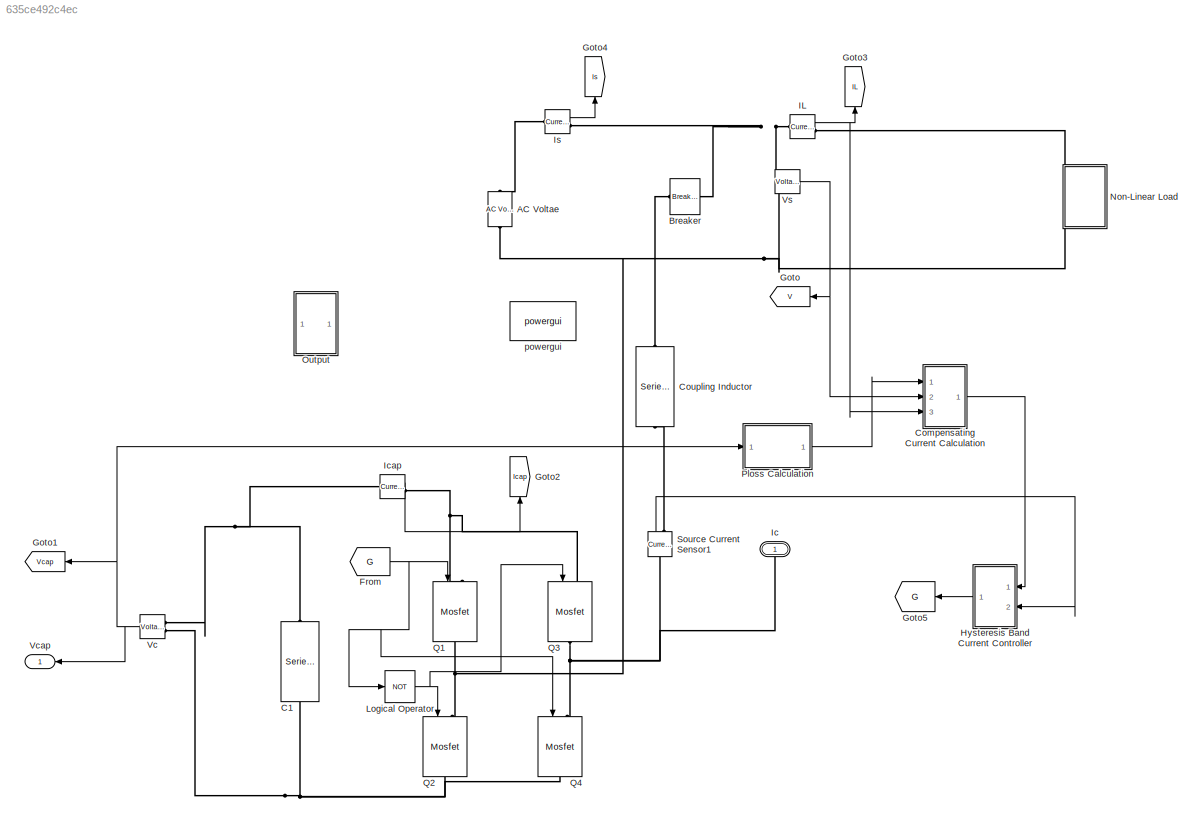
MODEL slx_635ce492c4ec
KIND model
CONFIG AbsTol = auto
CONFIG EnableMultiTasking = on
CONFIG FixedStep = auto
CONFIG MaxStep = auto
CONFIG MinStep = auto
CONFIG RelTol = 1e-3
CONFIG SampleTimeConstraint = Unconstrained
CONFIG Solver = ode45
CONFIG SolverName = ode45
CONFIG StartTime = 0.0
CONFIG StopTime = 5
BLOCK [Reference] AC Voltae  REF=powerlib/Electrical
Sources/AC Voltage Source
  Ports = [0, 0, 0, 0, 0, 1, 1]
  SourceBlock = powerlib/Electrical\nSources/AC Voltage Source
  SourceProductBaseCode = PS
  SourceProductName = Simscape Power Systems
  SourceType = AC Voltage Source
BLOCK [Reference] Breaker  REF=powerlib/Elements/Breaker
  Ports = [0, 0, 0, 0, 0, 1, 1]
  SourceBlock = powerlib/Elements/Breaker
  SourceProductBaseCode = PS
  SourceProductName = Simscape Power Systems
  SourceType = Breaker
BLOCK [Reference] C1  REF=powerlib/Elements/Series RLC Branch
  Ports = [0, 0, 0, 0, 0, 1, 1]
  SourceBlock = powerlib/Elements/Series RLC Branch
  SourceProductBaseCode = PS
  SourceProductName = Simscape Power Systems
  SourceType = Series RLC Branch
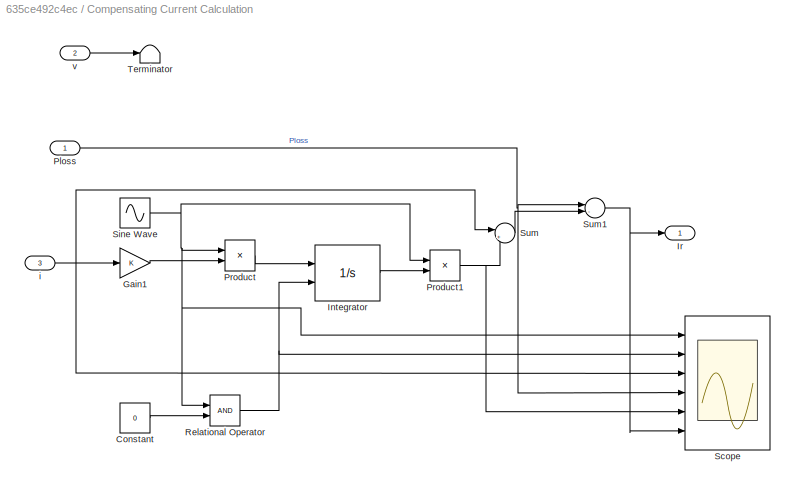
BLOCK [SubSystem] Compensating Current Calculation
  Ports = [3, 1]
  RequestExecContextInheritance = off
  Variant = off
BLOCK [Constant] Compensating Current Calculation/Constant
  Value = 0
BLOCK [Gain] Compensating Current Calculation/Gain1
  OutDataTypeStr = Inherit: Inherit via internal rule
  ParamDataTypeStr = Inherit: Inherit via internal rule
  SaturateOnIntegerOverflow = off
BLOCK [Integrator] Compensating Current Calculation/Integrator
  ExternalReset = either
  Ports = [2, 1]
BLOCK [Outport] Compensating Current Calculation/Ir
  IconDisplay = Port number
BLOCK [Inport] Compensating Current Calculation/Ploss
  IconDisplay = Port number
BLOCK [Product] Compensating Current Calculation/Product
  InputSameDT = off
  OutDataTypeStr = Inherit: Inherit via internal rule
  Ports = [2, 1]
  RndMeth = Floor
  SaturateOnIntegerOverflow = off
BLOCK [Product] Compensating Current Calculation/Product1
  InputSameDT = off
  OutDataTypeStr = Inherit: Inherit via internal rule
  Ports = [2, 1]
  RndMeth = Floor
  SaturateOnIntegerOverflow = off
BLOCK [RelationalOperator] Compensating Current Calculation/Relational Operator
  InputSameDT = off
  OutDataTypeStr = boolean
  Ports = [2, 1]
  RndMeth = Simplest
BLOCK [Scope] Compensating Current Calculation/Scope
  NumInputPorts = 6
  Ports = [6]
  ScopeSpecificationString = Simulink.scopes.TimeScopeBlockCfg('CurrentConfiguration', extmgr.ConfigurationSet(extmgr.Configuration('Core','General UI',true),extmgr.Configuration('Core','Source UI',true),extmgr.Configuration('Sources','WiredSimulink',true,'DataLoggingVariableName','ScopeData1'),extmgr.Configuration('Visuals','Time Domain',true,'SerializedDisplays',{struct('MinYLimReal','-1.25','MaxYLimReal','1.25','YLabelReal...<+4909ch>
BLOCK [Sin] Compensating Current Calculation/Sine Wave
  Frequency = 314.16
  Ports = [0, 1]
  SampleTime = 0
BLOCK [Sum] Compensating Current Calculation/Sum
  IconShape = round
  InputSameDT = off
  Inputs = |+-
  OutDataTypeStr = Inherit: Inherit via internal rule
  Ports = [2, 1]
  SaturateOnIntegerOverflow = off
BLOCK [Sum] Compensating Current Calculation/Sum1
  IconShape = round
  InputSameDT = off
  Inputs = |-+
  OutDataTypeStr = Inherit: Inherit via internal rule
  Ports = [2, 1]
  SaturateOnIntegerOverflow = off
BLOCK [Terminator] Compensating Current Calculation/Terminator
BLOCK [Inport] Compensating Current Calculation/i
  IconDisplay = Port number
  Port = 3
BLOCK [Inport] Compensating Current Calculation/v
  IconDisplay = Port number
  Port = 2
BLOCK [Reference] Coupling Inductor  REF=powerlib/Elements/Series RLC Branch
  Ports = [0, 0, 0, 0, 0, 1, 1]
  SourceBlock = powerlib/Elements/Series RLC Branch
  SourceProductBaseCode = PS
  SourceProductName = Simscape Power Systems
  SourceType = Series RLC Branch
BLOCK [From] From
  GotoTag = G
  TagVisibility = global
BLOCK [Goto] Goto
  GotoTag = V
  TagVisibility = global
BLOCK [Goto] Goto1
  GotoTag = Vcap
  TagVisibility = global
BLOCK [Goto] Goto2
  GotoTag = Icap
  TagVisibility = global
BLOCK [Goto] Goto3
  GotoTag = IL
  TagVisibility = global
BLOCK [Goto] Goto4
  GotoTag = Is
  TagVisibility = global
BLOCK [Goto] Goto5
  GotoTag = G
  TagVisibility = global
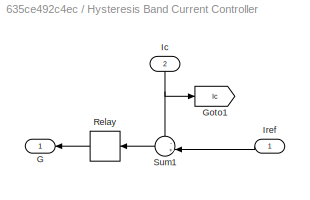
BLOCK [SubSystem] Hysteresis Band Current Controller
  Ports = [2, 1]
  RequestExecContextInheritance = off
  Variant = off
BLOCK [Outport] Hysteresis Band Current Controller/G
  IconDisplay = Port number
BLOCK [Goto] Hysteresis Band Current Controller/Goto1
  GotoTag = Ic
  TagVisibility = global
BLOCK [Inport] Hysteresis Band Current Controller/Ic
  IconDisplay = Port number
  Port = 2
BLOCK [Inport] Hysteresis Band Current Controller/Iref
  IconDisplay = Port number
BLOCK [Relay] Hysteresis Band Current Controller/Relay
  InputProcessing = Elements as channels (sample based)
  OffSwitchValue = -0.1
  OnSwitchValue = 0.1
  ZeroCross = off
BLOCK [Sum] Hysteresis Band Current Controller/Sum1
  IconShape = round
  InputSameDT = off
  Inputs = -+|
  OutDataTypeStr = Inherit: Inherit via internal rule
  Ports = [2, 1]
  SaturateOnIntegerOverflow = off
BLOCK [Reference] IL  REF=powerlib/Measurements/Current Measurement
  Ports = [0, 1, 0, 0, 0, 1, 1]
  SourceBlock = powerlib/Measurements/Current Measurement
  SourceProductBaseCode = PS
  SourceProductName = Simscape Power Systems
  SourceType = Current Measurement
  UserDataPersistent = on
BLOCK [PMIOPort] Ic
  Port = 1
  Side = Right
BLOCK [Reference] Icap  REF=powerlib/Measurements/Current Measurement
  Ports = [0, 1, 0, 0, 0, 1, 1]
  SourceBlock = powerlib/Measurements/Current Measurement
  SourceProductBaseCode = PS
  SourceProductName = Simscape Power Systems
  SourceType = Current Measurement
  UserDataPersistent = on
BLOCK [Reference] Is  REF=powerlib/Measurements/Current Measurement
  Ports = [0, 1, 0, 0, 0, 1, 1]
  SourceBlock = powerlib/Measurements/Current Measurement
  SourceProductBaseCode = PS
  SourceProductName = Simscape Power Systems
  SourceType = Current Measurement
  UserDataPersistent = on
BLOCK [Logic] Logical Operator
  AllPortsSameDT = off
  Operator = NOT
  OutDataTypeStr = boolean
  Ports = [1, 1]
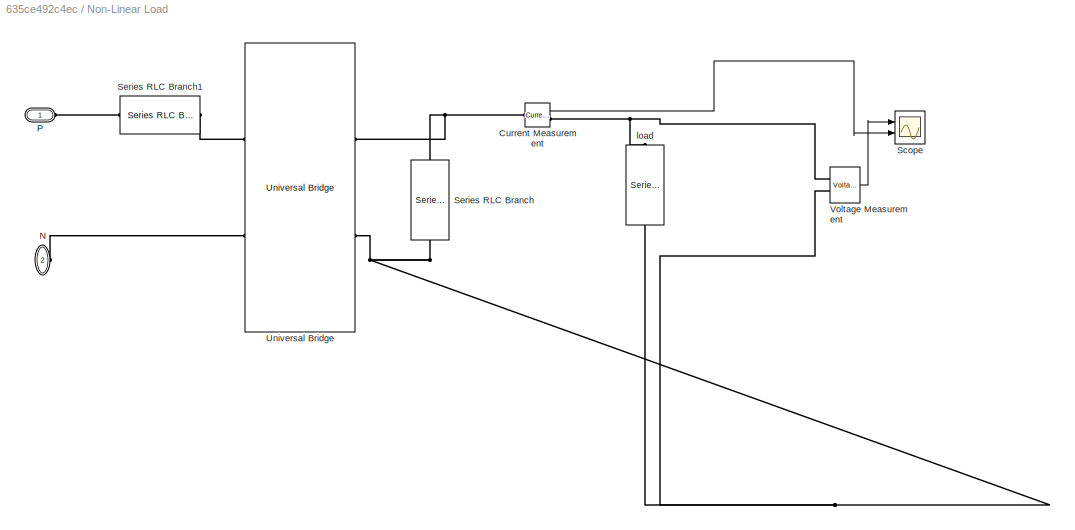
BLOCK [SubSystem] Non-Linear Load
  Ports = [0, 0, 0, 0, 0, 2]
  RequestExecContextInheritance = off
  Variant = off
BLOCK [Reference] Non-Linear Load/ load  REF=powerlib/Elements/Series RLC Branch
  Ports = [0, 0, 0, 0, 0, 1, 1]
  SourceBlock = powerlib/Elements/Series RLC Branch
  SourceProductBaseCode = PS
  SourceProductName = Simscape Power Systems
  SourceType = Series RLC Branch
BLOCK [Reference] Non-Linear Load/Current Measurement  REF=powerlib/Measurements/Current Measurement
  Ports = [0, 1, 0, 0, 0, 1, 1]
  SourceBlock = powerlib/Measurements/Current Measurement
  SourceProductBaseCode = PS
  SourceProductName = Simscape Power Systems
  SourceType = Current Measurement
  UserDataPersistent = on
BLOCK [PMIOPort] Non-Linear Load/N
  Port = 2
  Side = Left
BLOCK [PMIOPort] Non-Linear Load/P
  Port = 1
  Side = Left
BLOCK [Scope] Non-Linear Load/Scope
  NumInputPorts = 2
  Ports = [2]
  ScopeSpecificationString = Simulink.scopes.TimeScopeBlockCfg('CurrentConfiguration', extmgr.ConfigurationSet(extmgr.Configuration('Core','General UI',true),extmgr.Configuration('Core','Source UI',true),extmgr.Configuration('Sources','WiredSimulink',true,'DataLoggingVariableName','ScopeData1'),extmgr.Configuration('Visuals','Time Domain',true,'SerializedDisplays',{struct('MinYLimReal','219.28573','MaxYLimReal','356.00754','Y...<+2077ch>
BLOCK [Reference] Non-Linear Load/Series RLC Branch  REF=powerlib/Elements/Series RLC Branch
  Ports = [0, 0, 0, 0, 0, 1, 1]
  SourceBlock = powerlib/Elements/Series RLC Branch
  SourceProductBaseCode = PS
  SourceProductName = Simscape Power Systems
  SourceType = Series RLC Branch
BLOCK [Reference] Non-Linear Load/Series RLC Branch1  REF=powerlib/Elements/Series RLC Branch
  Ports = [0, 0, 0, 0, 0, 1, 1]
  SourceBlock = powerlib/Elements/Series RLC Branch
  SourceProductBaseCode = PS
  SourceProductName = Simscape Power Systems
  SourceType = Series RLC Branch
BLOCK [Reference] Non-Linear Load/Universal Bridge  REF=powerlib/Power
Electronics/Universal Bridge
  Ports = [0, 0, 0, 0, 0, 2, 2]
  SourceBlock = powerlib/Power\nElectronics/Universal Bridge
  SourceProductBaseCode = PS
  SourceProductName = Simscape Power Systems
  SourceType = Universal Bridge
BLOCK [Reference] Non-Linear Load/Voltage Measurement  REF=powerlib/Measurements/Voltage Measurement
  Ports = [0, 1, 0, 0, 0, 2]
  SourceBlock = powerlib/Measurements/Voltage Measurement
  SourceProductBaseCode = PS
  SourceProductName = Simscape Power Systems
  SourceType = Voltage Measurement
  UserDataPersistent = on
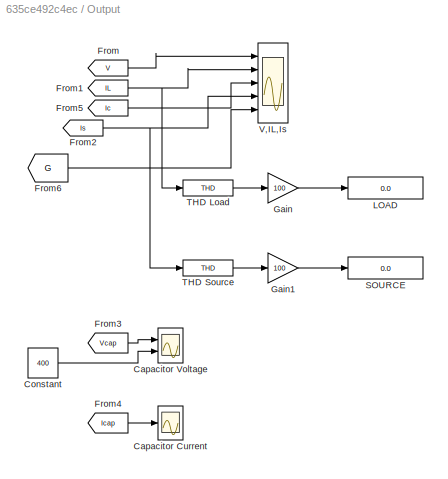
BLOCK [SubSystem] Output
  Ports = []
  RequestExecContextInheritance = off
  Variant = off
BLOCK [Scope] Output/Capacitor Current
  NumInputPorts = 1
  Ports = [1]
  ScopeSpecificationString = Simulink.scopes.TimeScopeBlockCfg('CurrentConfiguration', extmgr.ConfigurationSet(extmgr.Configuration('Core','General UI',true),extmgr.Configuration('Core','Source UI',true),extmgr.Configuration('Sources','WiredSimulink',true,'DataLoggingVariableName','ScopeData2','DataLoggingMaxPoints','50000'),extmgr.Configuration('Visuals','Time Domain',true,'SerializedDisplays',{struct('MinYLimReal','-1542.45...<+1538ch>
BLOCK [Scope] Output/Capacitor Voltage
  NumInputPorts = 2
  Ports = [2]
  ScopeSpecificationString = Simulink.scopes.TimeScopeBlockCfg('CurrentConfiguration', extmgr.ConfigurationSet(extmgr.Configuration('Core','General UI',true),extmgr.Configuration('Core','Source UI',true),extmgr.Configuration('Sources','WiredSimulink',true,'DataLoggingVariableName','ScopeData1','DataLoggingMaxPoints','50000'),extmgr.Configuration('Visuals','Time Domain',true,'SerializedDisplays',{struct('MinYLimReal','-89.0837...<+1554ch>
BLOCK [Constant] Output/Constant
  Value = 400
BLOCK [From] Output/From
  GotoTag = V
  TagVisibility = global
BLOCK [From] Output/From1
  GotoTag = IL
  TagVisibility = global
BLOCK [From] Output/From2
  GotoTag = Is
  TagVisibility = global
BLOCK [From] Output/From3
  GotoTag = Vcap
  TagVisibility = global
BLOCK [From] Output/From4
  GotoTag = Icap
  TagVisibility = global
BLOCK [From] Output/From5
  GotoTag = Ic
  TagVisibility = global
BLOCK [From] Output/From6
  GotoTag = G
  TagVisibility = global
BLOCK [Gain] Output/Gain
  Gain = 100
  OutDataTypeStr = Inherit: Inherit via internal rule
  ParamDataTypeStr = Inherit: Inherit via internal rule
  SaturateOnIntegerOverflow = off
BLOCK [Gain] Output/Gain1
  Gain = 100
  OutDataTypeStr = Inherit: Inherit via internal rule
  ParamDataTypeStr = Inherit: Inherit via internal rule
  SaturateOnIntegerOverflow = off
BLOCK [Display] Output/LOAD
  Decimation = 1
  Ports = [1]
BLOCK [Display] Output/SOURCE
  Decimation = 1
  Ports = [1]
BLOCK [Reference] Output/THD Load  REF=powerlib_meascontrol/Measurements/THD
  Ports = [1, 1]
  SourceBlock = powerlib_meascontrol/Measurements/THD
  SourceProductBaseCode = PS
  SourceProductName = Simscape Power Systems
  SourceType = THD
BLOCK [Reference] Output/THD Source  REF=powerlib_meascontrol/Measurements/THD
  Ports = [1, 1]
  SourceBlock = powerlib_meascontrol/Measurements/THD
  SourceProductBaseCode = PS
  SourceProductName = Simscape Power Systems
  SourceType = THD
BLOCK [Scope] Output/V,IL,Is
  NumInputPorts = 5
  Ports = [5]
  ScopeSpecificationString = Simulink.scopes.TimeScopeBlockCfg('CurrentConfiguration', extmgr.ConfigurationSet(extmgr.Configuration('Core','General UI',true),extmgr.Configuration('Core','Source UI',true),extmgr.Configuration('Sources','WiredSimulink',true,'DataLoggingMaxPoints','50000'),extmgr.Configuration('Visuals','Time Domain',true,'SerializedDisplays',{struct('MinYLimReal','-388.75','MaxYLimReal','388.75','YLabelReal',''...<+4874ch>
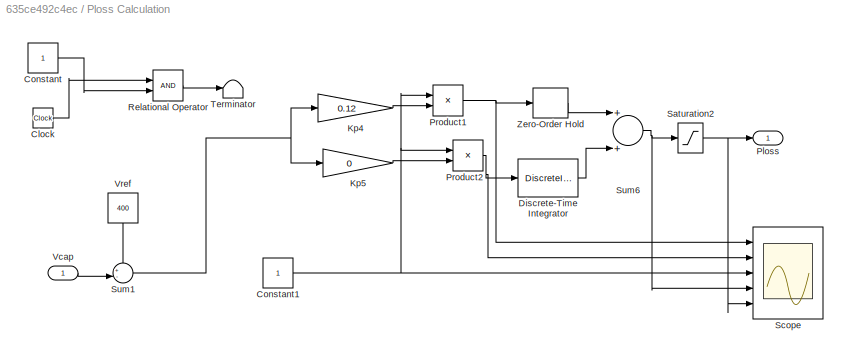
BLOCK [SubSystem] Ploss Calculation
  Ports = [1, 1]
  RequestExecContextInheritance = off
  Variant = off
BLOCK [Clock] Ploss Calculation/Clock
BLOCK [Constant] Ploss Calculation/Constant
BLOCK [Constant] Ploss Calculation/Constant1
BLOCK [DiscreteIntegrator] Ploss Calculation/Discrete-Time Integrator
  ICPrevOutput = DiscIntNeverNeededParam
  ICPrevScaledInput = DiscIntNeverNeededParam
  LimitOutput = on
  LowerSaturationLimit = -1e6
  Ports = [1, 1]
  SampleTime = 1e-6
  UpperSaturationLimit = 1e6
BLOCK [Gain] Ploss Calculation/Kp4
  Gain = 0.12
BLOCK [Gain] Ploss Calculation/Kp5
  Gain = 0
BLOCK [Outport] Ploss Calculation/Ploss
  IconDisplay = Port number
BLOCK [Product] Ploss Calculation/Product1
  InputSameDT = off
  OutDataTypeStr = Inherit: Inherit via internal rule
  Ports = [2, 1]
  RndMeth = Floor
  SaturateOnIntegerOverflow = off
BLOCK [Product] Ploss Calculation/Product2
  InputSameDT = off
  OutDataTypeStr = Inherit: Inherit via internal rule
  Ports = [2, 1]
  RndMeth = Floor
  SaturateOnIntegerOverflow = off
BLOCK [RelationalOperator] Ploss Calculation/Relational Operator
  InputSameDT = off
  OutDataTypeStr = boolean
  Ports = [2, 1]
  RndMeth = Simplest
BLOCK [Saturate] Ploss Calculation/Saturation2
  InputPortMap = u0
  LowerLimit = -1e10
  Ports = [1, 1]
  UpperLimit = 1e10
BLOCK [Scope] Ploss Calculation/Scope
  NumInputPorts = 5
  Ports = [5]
  ScopeSpecificationString = Simulink.scopes.TimeScopeBlockCfg('CurrentConfiguration', extmgr.ConfigurationSet(extmgr.Configuration('Core','General UI',true),extmgr.Configuration('Core','Source UI',true),extmgr.Configuration('Sources','WiredSimulink',true,'DataLoggingVariableName','ScopeData2'),extmgr.Configuration('Visuals','Time Domain',true,'SerializedDisplays',{struct('MinYLimReal','-716801.94717','MaxYLimReal','6451217.5...<+3543ch>
BLOCK [Sum] Ploss Calculation/Sum1
  IconShape = round
  InputSameDT = off
  Inputs = +-|
  OutDataTypeStr = Inherit: Inherit via internal rule
  Ports = [2, 1]
  SaturateOnIntegerOverflow = off
BLOCK [Sum] Ploss Calculation/Sum6
  Ports = [2, 1]
BLOCK [Terminator] Ploss Calculation/Terminator
BLOCK [Inport] Ploss Calculation/Vcap
  IconDisplay = Port number
BLOCK [Constant] Ploss Calculation/Vref
  Value = 400
BLOCK [ZeroOrderHold] Ploss Calculation/Zero-Order Hold
  SampleTime = 1e-6
BLOCK [Reference] Q1  REF=powerlib/Power
Electronics/Mosfet
  Ports = [1, 0, 0, 0, 0, 1, 1]
  SourceBlock = powerlib/Power\nElectronics/Mosfet
  SourceProductBaseCode = PS
  SourceProductName = Simscape Power Systems
  SourceType = Mosfet
BLOCK [Reference] Q2  REF=powerlib/Power
Electronics/Mosfet
  Ports = [1, 0, 0, 0, 0, 1, 1]
  SourceBlock = powerlib/Power\nElectronics/Mosfet
  SourceProductBaseCode = PS
  SourceProductName = Simscape Power Systems
  SourceType = Mosfet
BLOCK [Reference] Q3  REF=powerlib/Power
Electronics/Mosfet
  Ports = [1, 0, 0, 0, 0, 1, 1]
  SourceBlock = powerlib/Power\nElectronics/Mosfet
  SourceProductBaseCode = PS
  SourceProductName = Simscape Power Systems
  SourceType = Mosfet
BLOCK [Reference] Q4  REF=powerlib/Power
Electronics/Mosfet
  Ports = [1, 0, 0, 0, 0, 1, 1]
  SourceBlock = powerlib/Power\nElectronics/Mosfet
  SourceProductBaseCode = PS
  SourceProductName = Simscape Power Systems
  SourceType = Mosfet
BLOCK [Reference] Source Current Sensor1  REF=powerlib/Measurements/Current Measurement
  Ports = [0, 1, 0, 0, 0, 1, 1]
  SourceBlock = powerlib/Measurements/Current Measurement
  SourceProductBaseCode = PS
  SourceProductName = Simscape Power Systems
  SourceType = Current Measurement
  UserDataPersistent = on
BLOCK [Reference] Vc  REF=powerlib/Measurements/Voltage Measurement
  Ports = [0, 1, 0, 0, 0, 2]
  SourceBlock = powerlib/Measurements/Voltage Measurement
  SourceProductBaseCode = PS
  SourceProductName = Simscape Power Systems
  SourceType = Voltage Measurement
  UserDataPersistent = on
BLOCK [Outport] Vcap
  IconDisplay = Port number
BLOCK [Reference] Vs  REF=powerlib/Measurements/Voltage Measurement
  Ports = [0, 1, 0, 0, 0, 2]
  SourceBlock = powerlib/Measurements/Voltage Measurement
  SourceProductBaseCode = PS
  SourceProductName = Simscape Power Systems
  SourceType = Voltage Measurement
  UserDataPersistent = on
BLOCK [Reference] powergui  REF=powerlib/powergui
  Ports = []
  Priority = 1
  SourceBlock = powerlib/powergui
  SourceProductBaseCode = PS
  SourceProductName = Simscape Power Systems
  SourceType = PSB option menu block
LINE Compensating Current Calculation/Constant:1 -> Compensating Current Calculation/Relational Operator:2
LINE Compensating Current Calculation/Gain1:1 -> Compensating Current Calculation/Product:2
LINE Compensating Current Calculation/Integrator:1 -> Compensating Current Calculation/Product1:2
NET Compensating Current Calculation/Ploss:1 -> Compensating Current Calculation/Scope:4, Compensating Current Calculation/Sum1:1
NET Compensating Current Calculation/Product1:1 -> Compensating Current Calculation/Scope:5, Compensating Current Calculation/Sum:2
LINE Compensating Current Calculation/Product:1 -> Compensating Current Calculation/Integrator:1
NET Compensating Current Calculation/Relational Operator:1 -> Compensating Current Calculation/Integrator:2, Compensating Current Calculation/Scope:2
NET Compensating Current Calculation/Sine Wave:1 -> Compensating Current Calculation/Product1:1, Compensating Current Calculation/Product:1, Compensating Current Calculation/Relational Operator:1, Compensating Current Calculation/Scope:1
NET Compensating Current Calculation/Sum1:1 -> Compensating Current Calculation/Ir:1, Compensating Current Calculation/Scope:6
LINE Compensating Current Calculation/Sum:1 -> Compensating Current Calculation/Sum1:2
NET Compensating Current Calculation/i:1 -> Compensating Current Calculation/Gain1:1, Compensating Current Calculation/Scope:3, Compensating Current Calculation/Sum:1
LINE Compensating Current Calculation/v:1 -> Compensating Current Calculation/Terminator:1
LINE Compensating Current Calculation:1 -> Hysteresis Band Current Controller:1
NET From:1 -> Logical Operator:1, Q1:1, Q4:1
NET Hysteresis Band Current Controller/Ic:1 -> Hysteresis Band Current Controller/Goto1:1, Hysteresis Band Current Controller/Sum1:1
LINE Hysteresis Band Current Controller/Iref:1 -> Hysteresis Band Current Controller/Sum1:2
LINE Hysteresis Band Current Controller/Relay:1 -> Hysteresis Band Current Controller/G:1
LINE Hysteresis Band Current Controller/Sum1:1 -> Hysteresis Band Current Controller/Relay:1
LINE Hysteresis Band Current Controller:1 -> Goto5:1
NET IL:1 -> Compensating Current Calculation:3, Goto3:1
LINE Icap:1 -> Goto2:1
LINE Is:1 -> Goto4:1
NET Logical Operator:1 -> Q2:1, Q3:1
LINE Non-Linear Load/Current Measurement:1 -> Non-Linear Load/Scope:2
LINE Non-Linear Load/Voltage Measurement:1 -> Non-Linear Load/Scope:1
LINE Output/Constant:1 -> Output/Capacitor Voltage:2
NET Output/From1:1 -> Output/THD Load:1, Output/V,IL,Is:2
NET Output/From2:1 -> Output/THD Source:1, Output/V,IL,Is:4
LINE Output/From3:1 -> Output/Capacitor Voltage:1
LINE Output/From4:1 -> Output/Capacitor Current:1
LINE Output/From5:1 -> Output/V,IL,Is:3
LINE Output/From6:1 -> Output/V,IL,Is:5
LINE Output/From:1 -> Output/V,IL,Is:1
LINE Output/Gain1:1 -> Output/SOURCE:1
LINE Output/Gain:1 -> Output/LOAD:1
LINE Output/THD Load:1 -> Output/Gain:1
LINE Output/THD Source:1 -> Output/Gain1:1
LINE Ploss Calculation/Clock:1 -> Ploss Calculation/Relational Operator:1
NET Ploss Calculation/Constant1:1 -> Ploss Calculation/Product1:1, Ploss Calculation/Product2:1, Ploss Calculation/Scope:3
LINE Ploss Calculation/Constant:1 -> Ploss Calculation/Relational Operator:2
LINE Ploss Calculation/Discrete-Time Integrator:1 -> Ploss Calculation/Sum6:2
LINE Ploss Calculation/Kp4:1 -> Ploss Calculation/Product1:2
LINE Ploss Calculation/Kp5:1 -> Ploss Calculation/Product2:2
NET Ploss Calculation/Product1:1 -> Ploss Calculation/Scope:1, Ploss Calculation/Zero-Order Hold:1
NET Ploss Calculation/Product2:1 -> Ploss Calculation/Discrete-Time Integrator:1, Ploss Calculation/Scope:2
LINE Ploss Calculation/Relational Operator:1 -> Ploss Calculation/Terminator:1
NET Ploss Calculation/Saturation2:1 -> Ploss Calculation/Ploss:1, Ploss Calculation/Scope:5
NET Ploss Calculation/Sum1:1 -> Ploss Calculation/Kp4:1, Ploss Calculation/Kp5:1
NET Ploss Calculation/Sum6:1 -> Ploss Calculation/Saturation2:1, Ploss Calculation/Scope:4
LINE Ploss Calculation/Vcap:1 -> Ploss Calculation/Sum1:2
LINE Ploss Calculation/Vref:1 -> Ploss Calculation/Sum1:1
LINE Ploss Calculation/Zero-Order Hold:1 -> Ploss Calculation/Sum6:1
LINE Ploss Calculation:1 -> Compensating Current Calculation:1
LINE Source Current Sensor1:1 -> Hysteresis Band Current Controller:2
NET Vc:1 -> Goto1:1, Ploss Calculation:1, Vcap:1
NET Vs:1 -> Compensating Current Calculation:2, Goto:1
PNET net1: AC Voltae:LConn1 -- Non-Linear Load:LConn2 -- Q1:RConn1 -- Q2:LConn1 -- Vs:LConn2
PLINE AC Voltae:RConn1 -- Is:LConn1
PLINE Breaker:LConn1 -- Coupling Inductor:LConn1
PNET net2: Breaker:RConn1 -- IL:LConn1 -- Is:RConn1 -- Vs:LConn1
PNET net3: C1:LConn1 -- Icap:LConn1 -- Vc:LConn1
PNET net4: C1:RConn1 -- Q2:RConn1 -- Q4:RConn1 -- Vc:LConn2
PLINE Coupling Inductor:RConn1 -- Source Current Sensor1:RConn1
PLINE IL:RConn1 -- Non-Linear Load:LConn1
PNET net5: Ic:RConn1 -- Q3:RConn1 -- Q4:LConn1 -- Source Current Sensor1:LConn1
PNET net6: Icap:RConn1 -- Q1:LConn1 -- Q3:LConn1
PNET net7: Non-Linear Load/ load:LConn1 -- Non-Linear Load/Current Measurement:RConn1 -- Non-Linear Load/Voltage Measurement:LConn1
PNET net8: Non-Linear Load/ load:RConn1 -- Non-Linear Load/Series RLC Branch:RConn1 -- Non-Linear Load/Universal Bridge:RConn2 -- Non-Linear Load/Voltage Measurement:LConn2
PNET net9: Non-Linear Load/Current Measurement:LConn1 -- Non-Linear Load/Series RLC Branch:LConn1 -- Non-Linear Load/Universal Bridge:RConn1
PLINE Non-Linear Load/N:RConn1 -- Non-Linear Load/Universal Bridge:LConn2
PLINE Non-Linear Load/P:RConn1 -- Non-Linear Load/Series RLC Branch1:LConn1
PLINE Non-Linear Load/Series RLC Branch1:RConn1 -- Non-Linear Load/Universal Bridge:LConn1
note: NET lines group one-source signal fan-out (src -> all destinations, sorted); 1:1 wires keep LINE; PNET lines group multi-terminal physical nets as a canonical sorted terminal list (undirected conserving connections); 2-terminal nets keep the pairwise PLINE form
